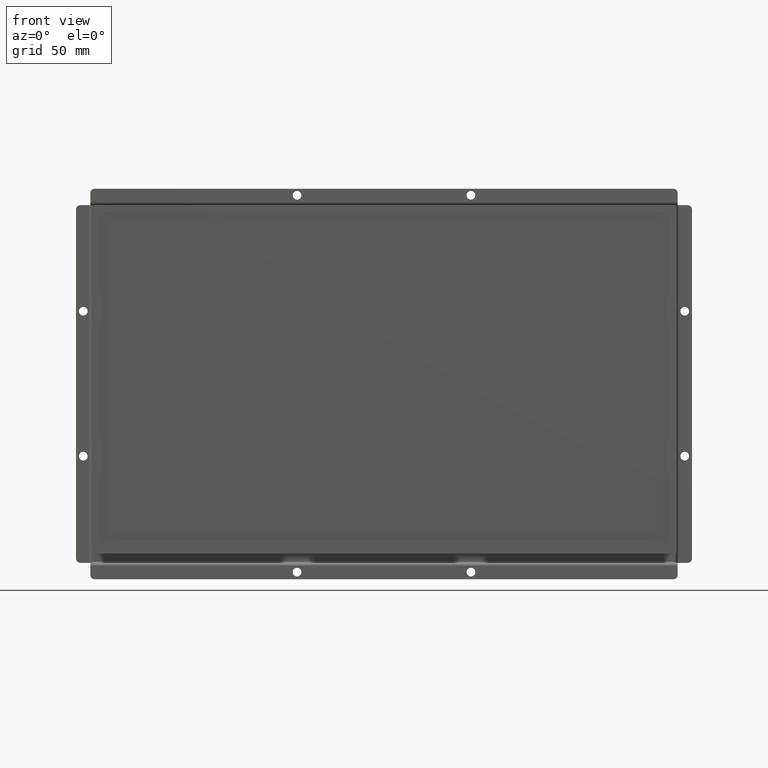
[diagram: clean part render]
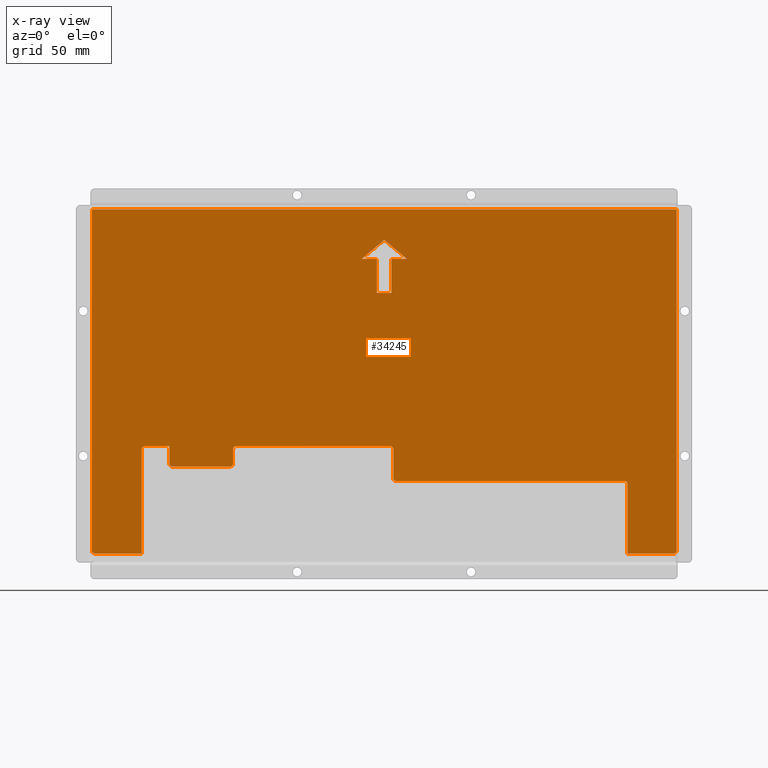
[diagram: x-ray — body ghosted, one internal face saturated and labeled with its STEP entity id]
A machine part, front view, then the same camera in x-ray: the body is ghosted and one INTERNAL B-rep face — a face not visible from any outside direction — is saturated and labeled: STEP entity #34245.
In plain terms, the highlighted planar face has unit normal (-0, -1, -0).
Its self-contained STEP definition (entity closure, byte-faithful):
#2166=FACE_BOUND('',#6975,.T.);
#3170=PLANE('',#37493);
#4900=FACE_OUTER_BOUND('',#6974,.T.);
#6974=EDGE_LOOP('',(#30547,#30548,#30549,#30550,#30551,#30552,#30553,#30554,
#30555,#30556,#30557,#30558,#30559,#30560,#30561,#30562,#30563,#30564,#30565,
#30566,#30567,#30568,#30569));
#6975=EDGE_LOOP('',(#30570,#30571,#30572,#30573,#30574,#30575,#30576));
#9917=LINE('',#58099,#13056);
#9918=LINE('',#58101,#13057);
#9919=LINE('',#58103,#13058);
#9920=LINE('',#58105,#13059);
#9921=LINE('',#58107,#13060);
#9922=LINE('',#58109,#13061);
#9923=LINE('',#58110,#13062);
#9929=LINE('',#58131,#13068);
#9934=LINE('',#58144,#13073);
#9938=LINE('',#58156,#13077);
#9942=LINE('',#58168,#13081);
#9945=LINE('',#58177,#13084);
#9950=LINE('',#58187,#13089);
#9954=LINE('',#58199,#13093);
#9957=LINE('',#58205,#13096);
#9961=LINE('',#58217,#13100);
#9964=LINE('',#58225,#13103);
#9966=LINE('',#58231,#13105);
#9967=LINE('',#58233,#13106);
#9968=LINE('',#58236,#13107);
#9969=LINE('',#58237,#13108);
#13056=VECTOR('',#45546,10.);
#13057=VECTOR('',#45547,10.);
#13058=VECTOR('',#45548,10.);
#13059=VECTOR('',#45549,10.);
#13060=VECTOR('',#45550,10.);
#13061=VECTOR('',#45551,10.);
#13062=VECTOR('',#45552,10.);
#13068=VECTOR('',#45568,10.);
#13073=VECTOR('',#45581,10.);
#13077=VECTOR('',#45593,10.);
#13081=VECTOR('',#45605,10.);
#13084=VECTOR('',#45616,10.);
#13089=VECTOR('',#45623,10.);
#13093=VECTOR('',#45635,10.);
#13096=VECTOR('',#45640,10.);
#13100=VECTOR('',#45652,10.);
#13103=VECTOR('',#45657,10.);
#13105=VECTOR('',#45663,10.);
#13106=VECTOR('',#45664,10.);
#13107=VECTOR('',#45667,10.);
#13108=VECTOR('',#45668,10.);
#14667=CIRCLE('',#37463,1.99999999999996);
#14670=CIRCLE('',#37468,2.00000000000001);
#14672=CIRCLE('',#37472,2.00000000000003);
#14674=CIRCLE('',#37476,1.99999999999999);
#14676=CIRCLE('',#37480,1.99999999999999);
#14678=CIRCLE('',#37485,2.0000000000001);
#14680=CIRCLE('',#37490,1.99999999999996);
#14681=CIRCLE('',#37494,2.);
#14682=CIRCLE('',#37495,2.);
#17472=VERTEX_POINT('',#58097);
#17473=VERTEX_POINT('',#58098);
#17474=VERTEX_POINT('',#58100);
#17475=VERTEX_POINT('',#58102);
#17476=VERTEX_POINT('',#58104);
#17477=VERTEX_POINT('',#58106);
#17478=VERTEX_POINT('',#58108);
#17481=VERTEX_POINT('',#58115);
#17482=VERTEX_POINT('',#58117);
#17487=VERTEX_POINT('',#58128);
#17488=VERTEX_POINT('',#58130);
#17490=VERTEX_POINT('',#58136);
#17492=VERTEX_POINT('',#58142);
#17494=VERTEX_POINT('',#58148);
#17496=VERTEX_POINT('',#58154);
#17498=VERTEX_POINT('',#58160);
#17500=VERTEX_POINT('',#58166);
#17502=VERTEX_POINT('',#58172);
#17506=VERTEX_POINT('',#58185);
#17508=VERTEX_POINT('',#58191);
#17510=VERTEX_POINT('',#58197);
#17512=VERTEX_POINT('',#58203);
#17514=VERTEX_POINT('',#58209);
#17516=VERTEX_POINT('',#58215);
#17519=VERTEX_POINT('',#58222);
#17520=VERTEX_POINT('',#58224);
#17521=VERTEX_POINT('',#58228);
#17522=VERTEX_POINT('',#58229);
#17523=VERTEX_POINT('',#58232);
#17524=VERTEX_POINT('',#58234);
#21903=EDGE_CURVE('',#17472,#17473,#9917,.T.);
#21904=EDGE_CURVE('',#17474,#17472,#9918,.T.);
#21905=EDGE_CURVE('',#17475,#17474,#9919,.T.);
#21906=EDGE_CURVE('',#17476,#17475,#9920,.T.);
#21907=EDGE_CURVE('',#17477,#17476,#9921,.T.);
#21908=EDGE_CURVE('',#17478,#17477,#9922,.T.);
#21909=EDGE_CURVE('',#17473,#17478,#9923,.T.);
#21912=EDGE_CURVE('',#17481,#17482,#14667,.T.);
#21918=EDGE_CURVE('',#17487,#17488,#9929,.T.);
#21922=EDGE_CURVE('',#17490,#17487,#14670,.T.);
#21925=EDGE_CURVE('',#17492,#17490,#9934,.T.);
#21928=EDGE_CURVE('',#17494,#17492,#14672,.T.);
#21931=EDGE_CURVE('',#17496,#17494,#9938,.T.);
#21934=EDGE_CURVE('',#17498,#17496,#14674,.T.);
#21937=EDGE_CURVE('',#17500,#17498,#9942,.T.);
#21940=EDGE_CURVE('',#17502,#17500,#14676,.T.);
#21942=EDGE_CURVE('',#17482,#17502,#9945,.T.);
#21947=EDGE_CURVE('',#17506,#17481,#9950,.T.);
#21950=EDGE_CURVE('',#17508,#17506,#14678,.T.);
#21953=EDGE_CURVE('',#17510,#17508,#9954,.T.);
#21956=EDGE_CURVE('',#17512,#17510,#9957,.T.);
#21959=EDGE_CURVE('',#17514,#17512,#14680,.T.);
#21962=EDGE_CURVE('',#17516,#17514,#9961,.T.);
#21965=EDGE_CURVE('',#17519,#17520,#9964,.T.);
#21967=EDGE_CURVE('',#17521,#17522,#14681,.T.);
#21968=EDGE_CURVE('',#17488,#17521,#9966,.T.);
#21969=EDGE_CURVE('',#17523,#17516,#9967,.T.);
#21970=EDGE_CURVE('',#17524,#17523,#14682,.T.);
#21971=EDGE_CURVE('',#17520,#17524,#9968,.T.);
#21972=EDGE_CURVE('',#17522,#17519,#9969,.T.);
#30547=ORIENTED_EDGE('',*,*,#21967,.F.);
#30548=ORIENTED_EDGE('',*,*,#21968,.F.);
#30549=ORIENTED_EDGE('',*,*,#21918,.F.);
#30550=ORIENTED_EDGE('',*,*,#21922,.F.);
#30551=ORIENTED_EDGE('',*,*,#21925,.F.);
#30552=ORIENTED_EDGE('',*,*,#21928,.F.);
#30553=ORIENTED_EDGE('',*,*,#21931,.F.);
#30554=ORIENTED_EDGE('',*,*,#21934,.F.);
#30555=ORIENTED_EDGE('',*,*,#21937,.F.);
#30556=ORIENTED_EDGE('',*,*,#21940,.F.);
#30557=ORIENTED_EDGE('',*,*,#21942,.F.);
#30558=ORIENTED_EDGE('',*,*,#21912,.F.);
#30559=ORIENTED_EDGE('',*,*,#21947,.F.);
#30560=ORIENTED_EDGE('',*,*,#21950,.F.);
#30561=ORIENTED_EDGE('',*,*,#21953,.F.);
#30562=ORIENTED_EDGE('',*,*,#21956,.F.);
#30563=ORIENTED_EDGE('',*,*,#21959,.F.);
#30564=ORIENTED_EDGE('',*,*,#21962,.F.);
#30565=ORIENTED_EDGE('',*,*,#21969,.F.);
#30566=ORIENTED_EDGE('',*,*,#21970,.F.);
#30567=ORIENTED_EDGE('',*,*,#21971,.F.);
#30568=ORIENTED_EDGE('',*,*,#21965,.F.);
#30569=ORIENTED_EDGE('',*,*,#21972,.F.);
#30570=ORIENTED_EDGE('',*,*,#21903,.T.);
#30571=ORIENTED_EDGE('',*,*,#21909,.T.);
#30572=ORIENTED_EDGE('',*,*,#21908,.T.);
#30573=ORIENTED_EDGE('',*,*,#21907,.T.);
#30574=ORIENTED_EDGE('',*,*,#21906,.T.);
#30575=ORIENTED_EDGE('',*,*,#21905,.T.);
#30576=ORIENTED_EDGE('',*,*,#21904,.T.);
#34245=ADVANCED_FACE('',(#4900,#2166),#3170,.F.);
#37463=AXIS2_PLACEMENT_3D('',#58118,#45558,#45559);
#37468=AXIS2_PLACEMENT_3D('',#58138,#45575,#45576);
#37472=AXIS2_PLACEMENT_3D('',#58150,#45587,#45588);
#37476=AXIS2_PLACEMENT_3D('',#58162,#45599,#45600);
#37480=AXIS2_PLACEMENT_3D('',#58174,#45611,#45612);
#37485=AXIS2_PLACEMENT_3D('',#58193,#45629,#45630);
#37490=AXIS2_PLACEMENT_3D('',#58211,#45646,#45647);
#37493=AXIS2_PLACEMENT_3D('',#58227,#45659,#45660);
#37494=AXIS2_PLACEMENT_3D('',#58230,#45661,#45662);
#37495=AXIS2_PLACEMENT_3D('',#58235,#45665,#45666);
#45546=DIRECTION('',(1.,0.,0.));
#45547=DIRECTION('',(-0.765094108699186,-0.643918476853862,0.));
#45548=DIRECTION('',(-0.765094108699186,0.643918476853862,0.));
#45549=DIRECTION('',(1.,0.,0.));
#45550=DIRECTION('',(0.,1.,0.));
#45551=DIRECTION('',(1.,0.,0.));
#45552=DIRECTION('',(1.89397498427811E-16,-1.,0.));
#45558=DIRECTION('center_axis',(0.,0.,1.));
#45559=DIRECTION('ref_axis',(1.,2.66787009672128E-16,0.));
#45568=DIRECTION('',(2.66787009672128E-16,-1.,0.));
#45575=DIRECTION('center_axis',(0.,0.,-1.));
#45576=DIRECTION('ref_axis',(-1.95365903957819E-15,-1.,0.));
#45581=DIRECTION('',(1.,4.92356132135652E-16,0.));
#45587=DIRECTION('center_axis',(0.,0.,1.));
#45588=DIRECTION('ref_axis',(-3.52603497783324E-14,-1.,0.));
#45593=DIRECTION('',(2.66787009672128E-16,-1.,0.));
#45599=DIRECTION('center_axis',(0.,0.,-1.));
#45600=DIRECTION('ref_axis',(2.66787009672128E-16,-1.,0.));
#45605=DIRECTION('',(1.,-6.68011291823796E-17,0.));
#45611=DIRECTION('center_axis',(0.,0.,-1.));
#45612=DIRECTION('ref_axis',(1.,2.66787009672128E-16,0.));
#45616=DIRECTION('',(-3.81950068847262E-15,1.,0.));
#45623=DIRECTION('',(1.,2.04314384907238E-15,0.));
#45629=DIRECTION('center_axis',(0.,0.,1.));
#45630=DIRECTION('ref_axis',(2.66787009672128E-16,-1.,0.));
#45635=DIRECTION('',(6.18797647433962E-15,-1.,0.));
#45640=DIRECTION('',(1.,4.44645016120214E-15,0.));
#45646=DIRECTION('center_axis',(0.,0.,-1.));
#45647=DIRECTION('ref_axis',(1.,2.66787009672128E-16,0.));
#45652=DIRECTION('',(-2.66787009672128E-16,1.,0.));
#45657=DIRECTION('',(-1.,5.5136395237769E-17,0.));
#45659=DIRECTION('center_axis',(0.,0.,1.));
#45660=DIRECTION('ref_axis',(1.,0.,0.));
#45661=DIRECTION('center_axis',(0.,0.,1.));
#45662=DIRECTION('ref_axis',(0.707106781186554,-0.707106781186541,0.));
#45663=DIRECTION('',(1.,8.80474269839034E-17,0.));
#45664=DIRECTION('',(1.,8.80474269839034E-17,0.));
#45665=DIRECTION('center_axis',(0.,0.,1.));
#45666=DIRECTION('ref_axis',(-0.707106781186554,-0.707106781186541,0.));
#45667=DIRECTION('',(2.95443964973015E-16,-1.,0.));
#45668=DIRECTION('',(-2.95443964973015E-16,1.,0.));
#58097=CARTESIAN_POINT('',(-15.5559549191645,86.0367445076135,2.7));
#58098=CARTESIAN_POINT('',(-5.01331853234486,86.0367445076135,2.7));
#58099=CARTESIAN_POINT('',(-4.86572326887289,86.0367445076135,2.7));
#58100=CARTESIAN_POINT('',(0.,99.1289467395537,2.7));
#58101=CARTESIAN_POINT('',(-31.8675364049103,72.3085918712838,2.7));
#58102=CARTESIAN_POINT('',(15.5559549191645,86.0367445076135,2.7));
#58103=CARTESIAN_POINT('',(21.327713095741,81.1791175940449,2.7));
#58104=CARTESIAN_POINT('',(5.01331853234486,86.0367445076135,2.7));
#58105=CARTESIAN_POINT('',(5.4189134568818,86.0367445076135,2.7));
#58106=CARTESIAN_POINT('',(5.01331853234486,62.5892748453187,2.7));
#58107=CARTESIAN_POINT('',(5.01331853234486,46.4887493642717,2.7));
#58108=CARTESIAN_POINT('',(-5.01331853234485,62.5892748453187,2.7));
#58109=CARTESIAN_POINT('',(0.147595263471971,62.5892748453187,2.7));
#58110=CARTESIAN_POINT('',(-5.01331853234485,34.7650145331243,2.7));
#58115=CARTESIAN_POINT('',(-106.25,-57.2,2.7));
#58117=CARTESIAN_POINT('',(-104.25,-55.2,2.7));
#58118=CARTESIAN_POINT('Origin',(-106.25,-55.2,2.7));
#58128=CARTESIAN_POINT('',(167.75,-69.2,2.7));
#58130=CARTESIAN_POINT('',(167.75,-117.2,2.7));
#58131=CARTESIAN_POINT('',(167.75,-117.2,2.7));
#58136=CARTESIAN_POINT('',(165.75,-67.2,2.7));
#58138=CARTESIAN_POINT('Origin',(165.75,-69.2,2.7));
#58142=CARTESIAN_POINT('',(8.24999999999996,-67.2000000000001,2.7));
#58144=CARTESIAN_POINT('',(165.75,-67.2,2.7));
#58148=CARTESIAN_POINT('',(6.25,-65.2,2.7));
#58150=CARTESIAN_POINT('Origin',(8.25000000000003,-65.2,2.7));
#58154=CARTESIAN_POINT('',(6.25,-45.2,2.7));
#58156=CARTESIAN_POINT('',(6.25,-65.2,2.7));
#58160=CARTESIAN_POINT('',(4.25000000000001,-43.2,2.7));
#58162=CARTESIAN_POINT('Origin',(4.25000000000001,-45.2,2.7));
#58166=CARTESIAN_POINT('',(-102.25,-43.2,2.7));
#58168=CARTESIAN_POINT('',(4.25000000000001,-43.2,2.7));
#58172=CARTESIAN_POINT('',(-104.25,-45.2,2.7));
#58174=CARTESIAN_POINT('Origin',(-102.25,-45.2,2.7));
#58177=CARTESIAN_POINT('',(-104.25,-45.2,2.7));
#58185=CARTESIAN_POINT('',(-146.25,-57.2000000000001,2.7));
#58187=CARTESIAN_POINT('',(-106.25,-57.2,2.7));
#58191=CARTESIAN_POINT('',(-148.25,-55.2000000000001,2.7));
#58193=CARTESIAN_POINT('Origin',(-146.25,-55.2000000000001,2.7));
#58197=CARTESIAN_POINT('',(-148.25,-43.2,2.7));
#58199=CARTESIAN_POINT('',(-148.25,-55.2000000000001,2.7));
#58203=CARTESIAN_POINT('',(-165.25,-43.2000000000001,2.7));
#58205=CARTESIAN_POINT('',(-148.25,-43.2,2.7));
#58209=CARTESIAN_POINT('',(-167.25,-45.2000000000001,2.7));
#58211=CARTESIAN_POINT('Origin',(-165.25,-45.2000000000001,2.7));
#58215=CARTESIAN_POINT('',(-167.25,-117.2,2.7));
#58217=CARTESIAN_POINT('',(-167.25,-45.2000000000001,2.7));
#58222=CARTESIAN_POINT('',(201.75,120.3,2.7));
#58224=CARTESIAN_POINT('',(-201.75,120.3,2.7));
#58225=CARTESIAN_POINT('',(-201.75,120.3,2.7));
#58227=CARTESIAN_POINT('Origin',(-4.71812800540092,6.94075422092984,2.7));
#58228=CARTESIAN_POINT('',(199.75,-117.2,2.7));
#58229=CARTESIAN_POINT('',(201.75,-115.2,2.7));
#58230=CARTESIAN_POINT('Origin',(199.75,-115.2,2.7));
#58231=CARTESIAN_POINT('',(-103.2340640027,-117.2,2.7));
#58232=CARTESIAN_POINT('',(-199.75,-117.2,2.7));
#58233=CARTESIAN_POINT('',(-103.2340640027,-117.2,2.7));
#58234=CARTESIAN_POINT('',(-201.75,-115.2,2.7));
#58235=CARTESIAN_POINT('Origin',(-199.75,-115.2,2.7));
#58236=CARTESIAN_POINT('',(-201.75,65.1203771104649,2.7));
#58237=CARTESIAN_POINT('',(201.75,-55.1296228895351,2.7));